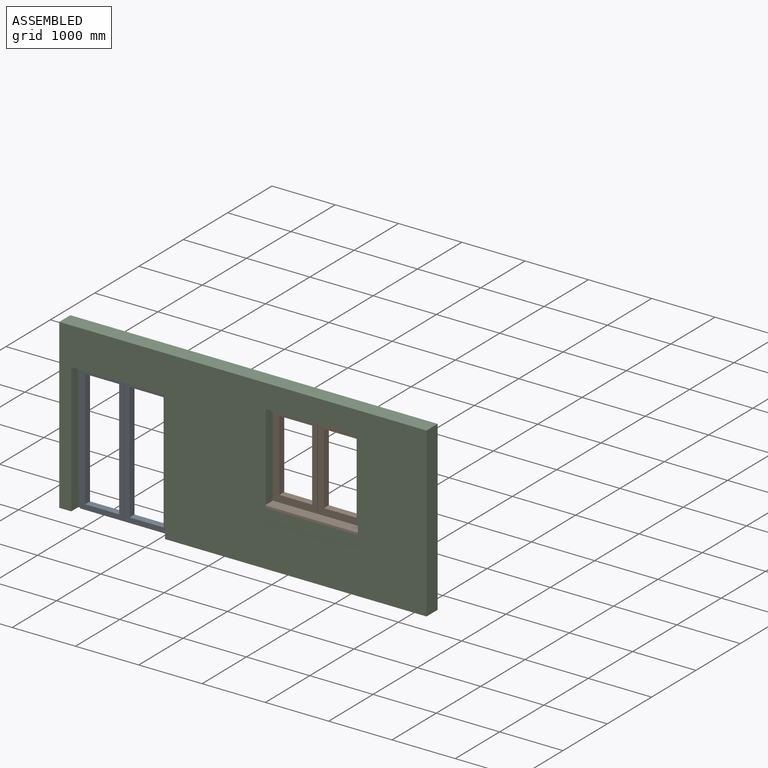
[diagram: assembled view]
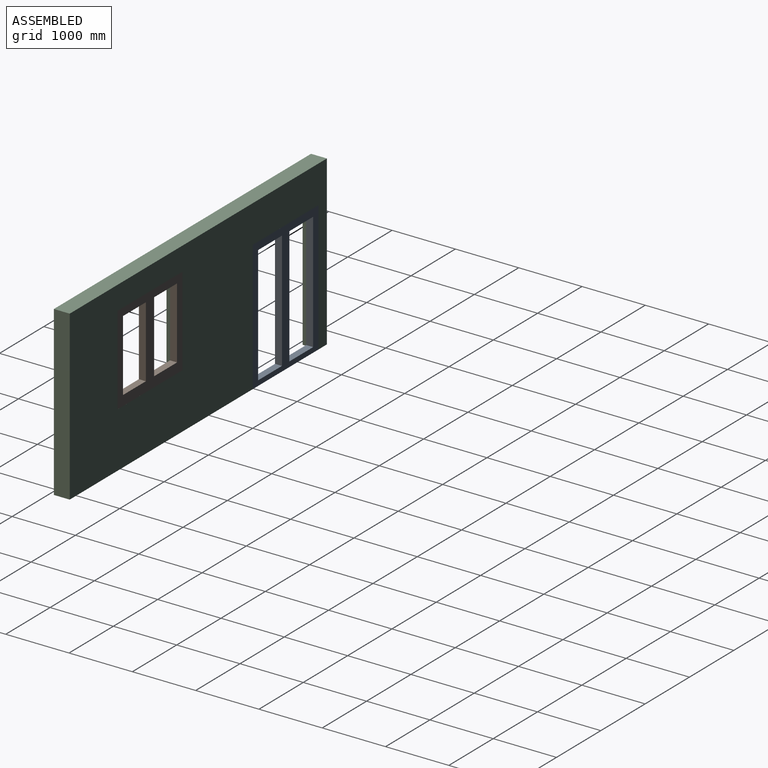
[diagram: assembled view, second angle]
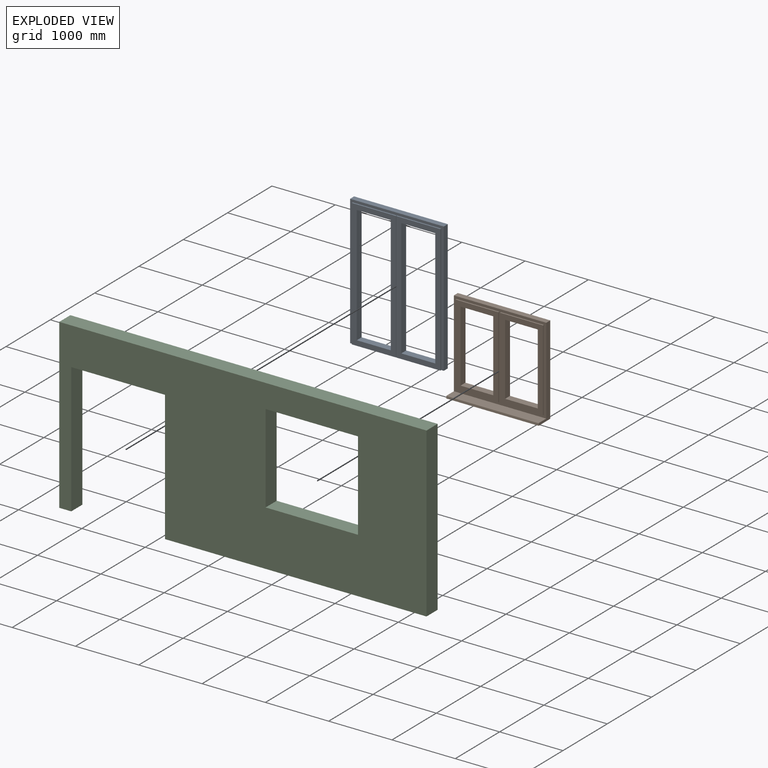
[diagram: exploded view]
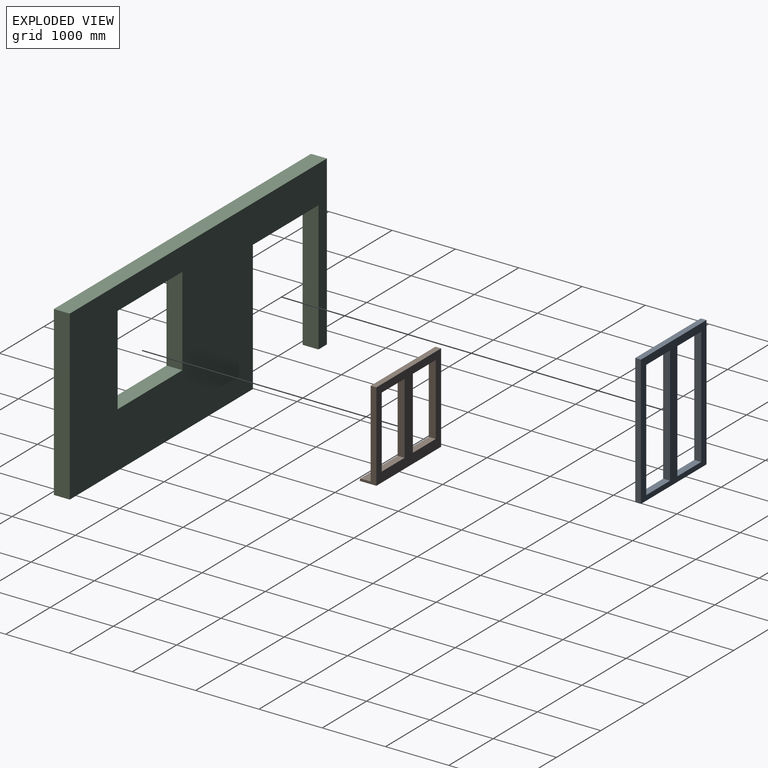
[diagram: exploded view, second angle]
ASSEMBLY  parts=3 mates=2
PART A: 22 faces, bbox 1480x110x2060 mm
  f0: plane 1480x110mm, normal (0,0,-1), area 161080mm2, adj f1,f12,f13,f14,f15,f16,f17,f18
  f1: plane 2060x1480mm, normal (0,-1,0), area 1051160mm2, adj f0,f2,f3,f4,f5,f7,f8,f9
  f2: plane 1860x110mm, normal (-1,0,0), area 204600mm2, adj f1,f3,f5,f13
  f3: plane 537x110mm, normal (0,0,1), area 59070mm2, adj f1,f2,f4,f13
  f4: plane 1860x110mm, normal (1,0,0), area 204600mm2, adj f1,f3,f5,f13
  f5: plane 537x110mm, normal (0,0,-1), area 59070mm2, adj f1,f2,f4,f13
  f6: plane 697x20mm, normal (0,0,1), area 13940mm2, adj f12,f13,f14,f15
  f7: plane 1860x110mm, normal (-1,0,0), area 204600mm2, adj f1,f8,f10,f17
  f8: plane 537x110mm, normal (0,0,-1), area 59070mm2, adj f1,f7,f9,f17
  f9: plane 1860x110mm, normal (1,0,0), area 204600mm2, adj f1,f8,f10,f17
  f10: plane 537x110mm, normal (0,0,1), area 59070mm2, adj f1,f7,f9,f17
  f11: plane 697x20mm, normal (0,0,1), area 13940mm2, adj f15,f16,f17,f18
  f12: plane 2020x20mm, normal (1,0,0), area 40400mm2, adj f0,f6,f13,f15
  f13: plane 2020x697mm, normal (0,1,0), area 409120mm2, adj f0,f2,f3,f4,f5,f6,f12,f14
  f14: plane 2020x20mm, normal (-1,0,0), area 40400mm2, adj f0,f6,f13,f15
  f15: plane 2060x1480mm, normal (0,1,0), area 232920mm2, adj f0,f6,f11,f12,f14,f16,f18,f19
  f16: plane 2020x20mm, normal (1,0,0), area 40400mm2, adj f0,f11,f15,f17
  f17: plane 2020x697mm, normal (0,1,0), area 409120mm2, adj f0,f7,f8,f9,f10,f11,f16,f18
  f18: plane 2020x20mm, normal (-1,0,0), area 40400mm2, adj f0,f11,f15,f17
  f19: plane 2060x90mm, normal (-1,0,0), area 185400mm2, adj f0,f1,f15,f20
  f20: plane 1480x90mm, normal (0,0,1), area 133200mm2, adj f1,f15,f19,f21
  f21: plane 2060x90mm, normal (1,0,0), area 185400mm2, adj f0,f1,f15,f20
PART B: 27 faces, bbox 1460x263x1405 mm
  f0: plane 1288x676mm, normal (0,1,0), area 288640mm2, adj f1,f2,f3,f4,f17,f18,f19,f20
  f1: plane 1288x20mm, normal (1,0,0), area 25760mm2, adj f0,f2,f4,f15
  f2: plane 676x20mm, normal (0,0,-1), area 13520mm2, adj f0,f1,f3,f15
  f3: plane 1288x20mm, normal (-1,0,0), area 25760mm2, adj f0,f2,f4,f15
  f4: plane 676x20mm, normal (0,0,1), area 13520mm2, adj f0,f1,f3,f15
  f5: plane 676x20mm, normal (0,0,-1), area 13520mm2, adj f6,f8,f15,f16
  f6: plane 1288x20mm, normal (-1,0,0), area 25760mm2, adj f5,f7,f15,f16
  f7: plane 676x20mm, normal (0,0,1), area 13520mm2, adj f6,f8,f15,f16
  f8: plane 1288x20mm, normal (1,0,0), area 25760mm2, adj f5,f7,f15,f16
  f9: plane 1460x31.8mm, normal (0,0.99,0.13), area 46855.2mm2, adj f10,f11,f12,f13
  f10: cylinder r=6mm len=1460mm, axis (1,0,0), area 12583.5mm2, adj f9,f11,f13,f14
  f11: plane 1405x263mm, normal (-1,0,0), area 132752.8mm2, adj f9,f10,f12,f14,f15,f25,f26
  f12: plane 1460x263mm, normal (0,0,-1), area 383980mm2, adj f9,f11,f13,f25
  f13: plane 1405x263mm, normal (1,0,0), area 132754.2mm2, adj f9,f10,f12,f14,f15,f25,f26
  f14: plane 1460x162.76mm, normal (0,0,1), area 237624.2mm2, adj f10,f11,f13,f15
  f15: plane 1460x1368mm, normal (0,1,0), area 255904mm2, adj f1,f2,f3,f4,f5,f6,f7,f8
  f16: plane 1288x676mm, normal (0,1,0), area 288640mm2, adj f5,f6,f7,f8,f21,f22,f23,f24
  f17: plane 516x110mm, normal (0,0,-1), area 56760mm2, adj f0,f18,f20,f25
  f18: plane 1128x110mm, normal (1,0,0), area 124080mm2, adj f0,f17,f19,f25
  f19: plane 516x110mm, normal (0,0,1), area 56760mm2, adj f0,f18,f20,f25
  f20: plane 1128x110mm, normal (-1,0,0), area 124080mm2, adj f0,f17,f19,f25
  f21: plane 516x110mm, normal (0,0,-1), area 56760mm2, adj f16,f22,f24,f25
  f22: plane 1128x110mm, normal (1,0,0), area 124080mm2, adj f16,f21,f23,f25
  f23: plane 516x110mm, normal (0,0,1), area 56760mm2, adj f16,f22,f24,f25
  f24: plane 1128x110mm, normal (-1,0,0), area 124080mm2, adj f16,f21,f23,f25
  f25: plane 1460x1405mm, normal (0,-1,0), area 887204mm2, adj f11,f12,f13,f17,f18,f19,f20,f21
  f26: plane 1460x90mm, normal (0,0,1), area 131400mm2, adj f11,f13,f15,f25
PART C: 14 faces, bbox 5802x250x2655 mm
  f0: plane 2060x250mm, normal (1,0,0), area 515000mm2, adj f1,f10,f11,f13
  f1: plane 1480x250mm, normal (0,0,-1), area 370000mm2, adj f0,f2,f10,f13
  f2: plane 2060x250mm, normal (-1,0,0), area 515000mm2, adj f1,f10,f12,f13
  f3: plane 5802x250mm, normal (0,0,1), area 1450500mm2, adj f8,f9,f10,f13
  f4: plane 1460x250mm, normal (0,0,1), area 365000mm2, adj f5,f7,f10,f13
  f5: plane 1405x250mm, normal (-1,0,0), area 351250mm2, adj f4,f6,f10,f13
  f6: plane 1460x250mm, normal (0,0,-1), area 365000mm2, adj f5,f7,f10,f13
  f7: plane 1405x250mm, normal (1,0,0), area 351250mm2, adj f4,f6,f10,f13
  f8: plane 2655x250mm, normal (-1,0,0), area 663750mm2, adj f3,f10,f11,f13
  f9: plane 2655x250mm, normal (1,0,0), area 663750mm2, adj f3,f10,f12,f13
  f10: plane 5802x2655mm, normal (0,1,0), area 10304210mm2, adj f0,f1,f2,f3,f4,f5,f6,f7
  f11: plane 4132x250mm, normal (0,0,-1), area 1033000mm2, adj f0,f8,f10,f13
  f12: plane 250x190mm, normal (0,0,-1), area 47500mm2, adj f2,f9,f10,f13
  f13: plane 5802x2655mm, normal (0,-1,0), area 10304210mm2, adj f0,f1,f2,f3,f4,f5,f6,f7
PLACE A rot(axis=(0,0,1),180deg) t=(2317.41,5182.34,31.72)mm
PLACE B rot(axis=(0,0,1),180deg) t=(2317.41,5182.34,31.72)mm
PLACE C rot(axis=(0,0,1),180deg) t=(2317.41,5182.34,31.72)mm
MATE fastened B.f25 <-> C.f13  axis (0,1,0) through (1235.41,5432.34,908.72)mm
MATE fastened A.f1 <-> C.f13  axis (0,1,0) through (-3294.59,5432.34,31.72)mm
